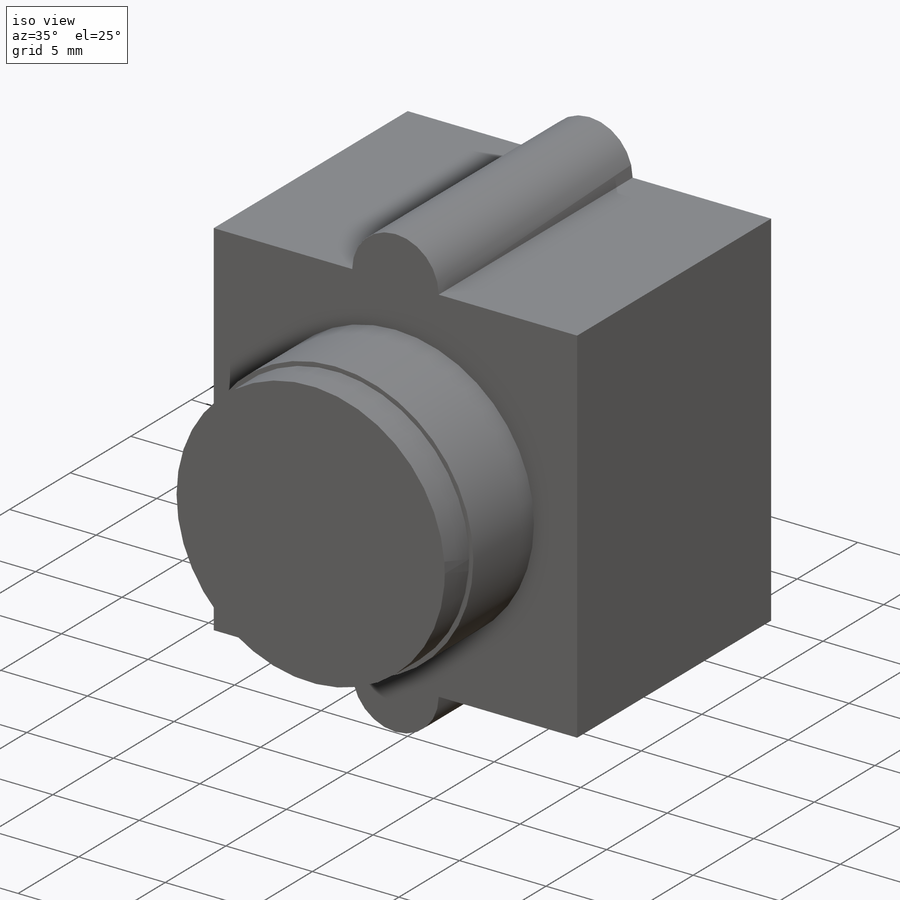
[diagram: iso view]
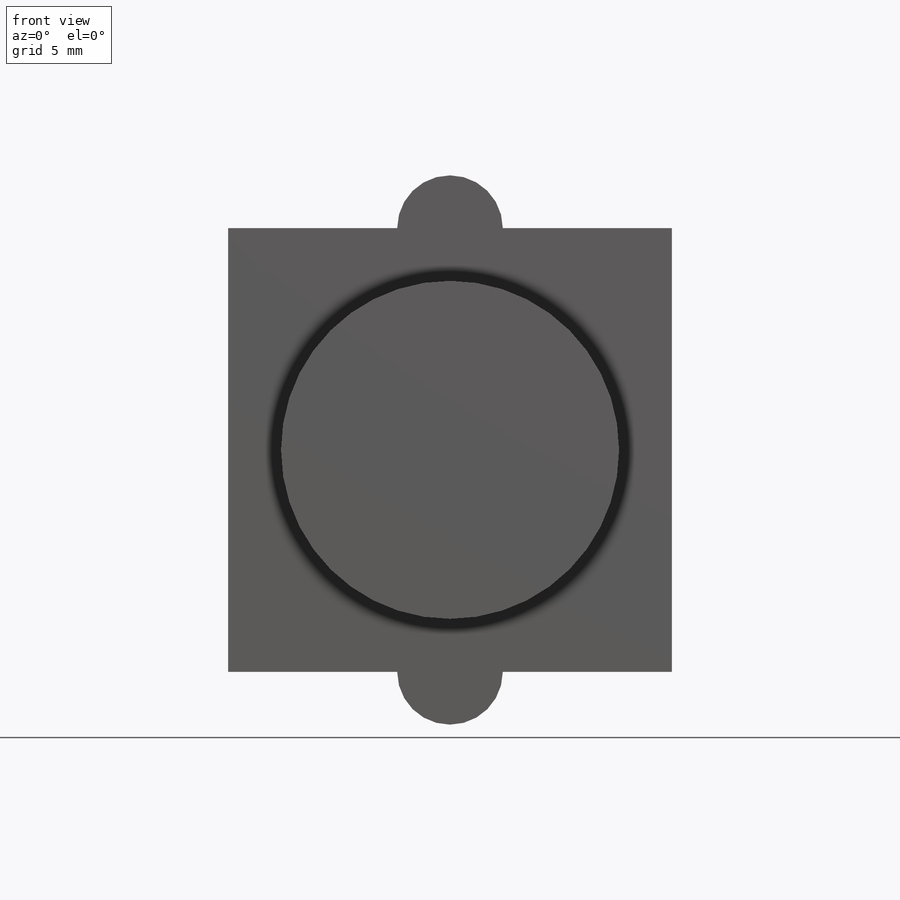
[diagram: front view]
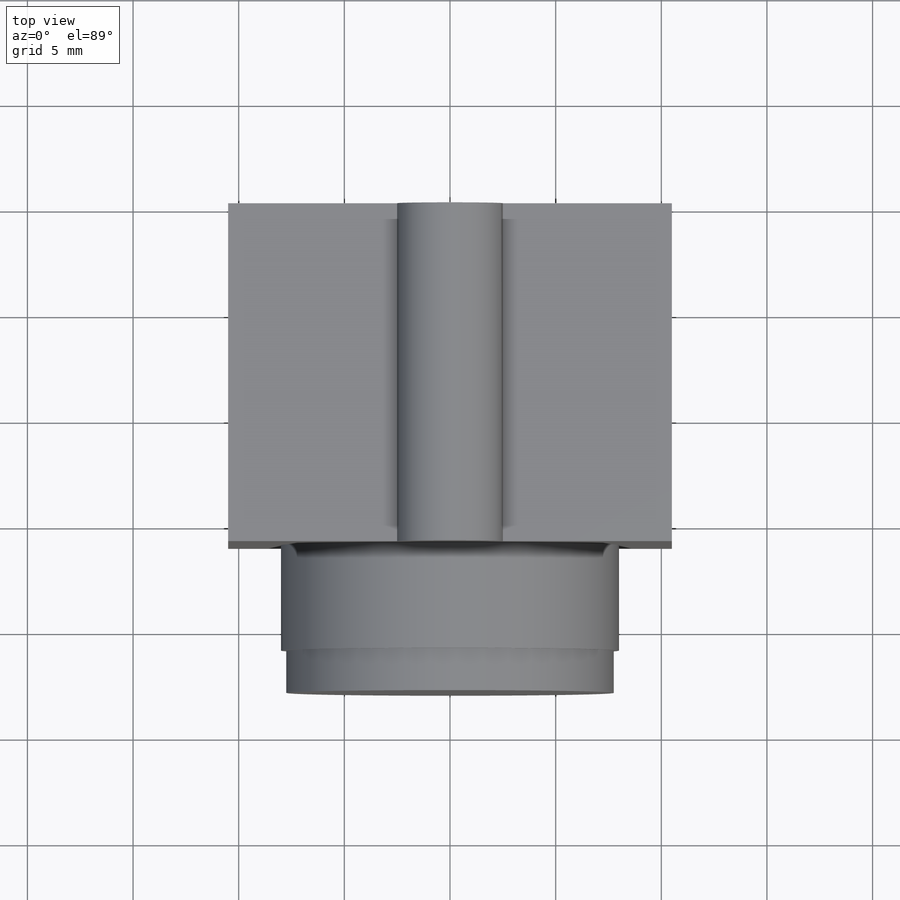
[diagram: top view]
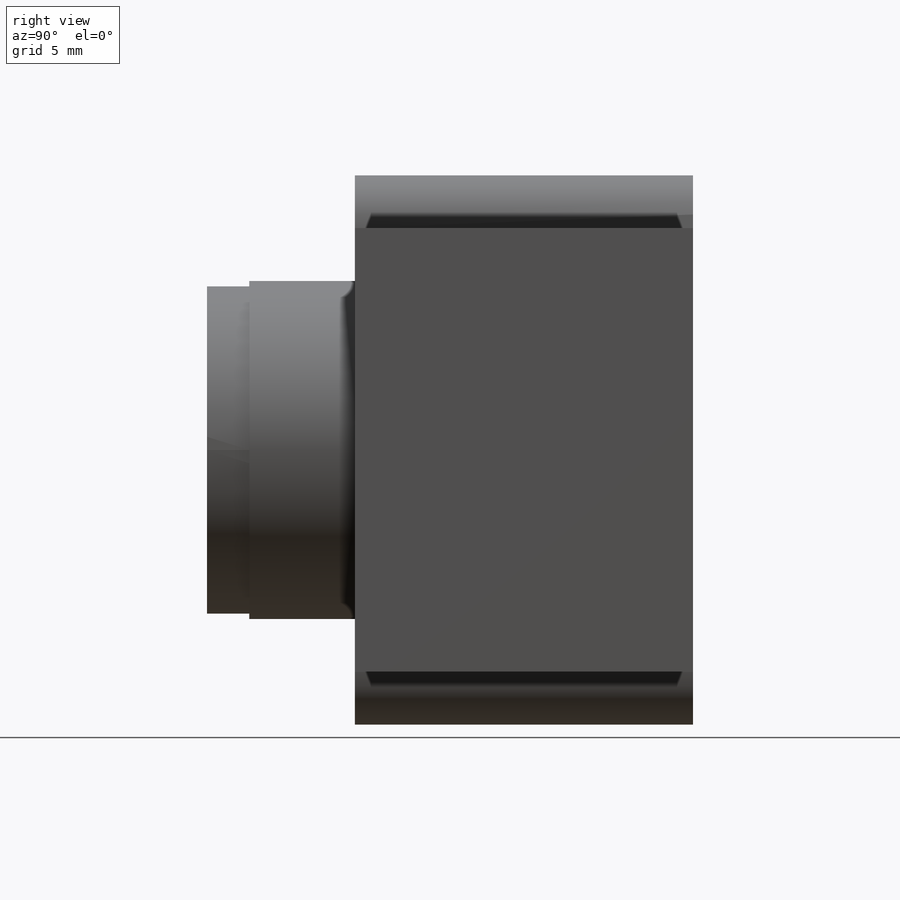
[diagram: right view]
SOLIDWORKS PART (.sldprt)
format: sldprt  version: not decoded by parser v0  size: 167,424 bytes
history: native  units: mm
features: sketch x3, extrude x3, material x1 (+17 scaffold rows collapsed)
feature tree (24):
  scaffold x17  (default folders/planes/origin — collapsed)
  material  "Material <not specified>"
  sketch  "Sketch1"  dims[c1.D3=5.0mm c1.D4=5.0mm c2.D3=5.0mm c2.D4=5.5mm c2.D1=21.0mm c2.D2=21.0mm c3.D3=26.0mm c3.D4=10.5mm c3.D5=10.5mm c3.D6=10.25mm]
  extrude  "Extrude1"  Depth=16mm
  sketch  "Sketch2"  dims[D1=16.0mm]
  extrude  "Extrude2"  Depth=5mm
  sketch  "Sketch3"  dims[D1=15.5mm]
  extrude  "Extrude3"  Depth=2mm
decode coverage: 6 of 6 modeling features carry decoded parameters
note: suppression state not decoded; provenance and decode notes live in map.json
